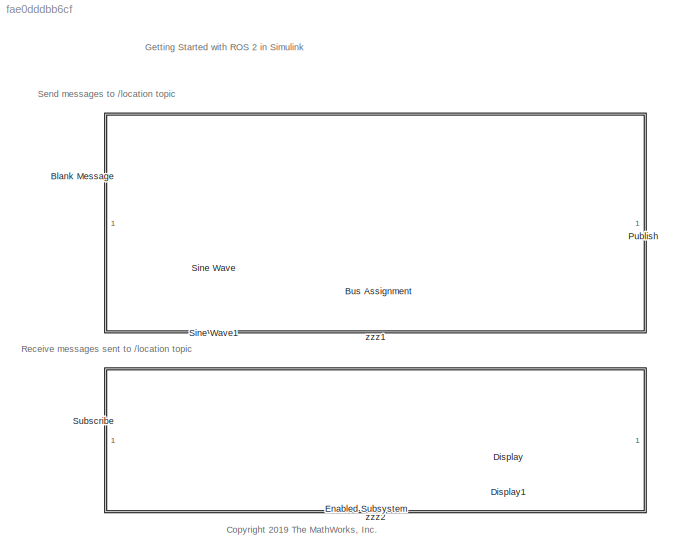
MODEL slx_fae0dddbb6cf
KIND model
CONFIG AbsTol = auto
CONFIG EnableMultiTasking = on
CONFIG FixedStep = 0.01
CONFIG MaxStep = auto
CONFIG MinStep = auto
CONFIG RelTol = 1e-3
CONFIG SampleTimeConstraint = Unconstrained
CONFIG SolverName = FixedStepDiscrete
CONFIG StartTime = 0.0
CONFIG StopTime = 10.0
BLOCK [Reference] Blank Message  REF=ros2lib/Blank Message  (lib defined in slx_3c1549211f48)
  SourceBlock = ros2lib/Blank Message
  SourceType = ROS2 Blank Message
BLOCK [BusAssignment] Bus Assignment
  AssignedSignals = x,y
BLOCK [Display] Display
  Decimation = 1
BLOCK [Display] Display1
  Decimation = 1
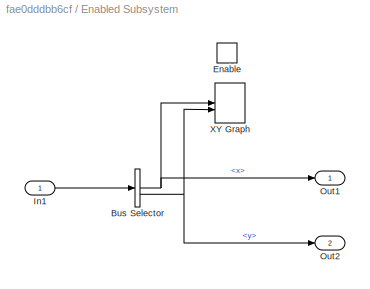
BLOCK [SubSystem] Enabled Subsystem
BLOCK [BusSelector] Enabled Subsystem/Bus Selector
  DialogController = Simulink.DDGSource_BusSelector
  OutputSignals = x,y
BLOCK [EnablePort] Enabled Subsystem/Enable
BLOCK [Inport] Enabled Subsystem/In1
BLOCK [Outport] Enabled Subsystem/Out1
  VectorParamsAs1DForOutWhenUnconnected = off
BLOCK [Outport] Enabled Subsystem/Out2
  Port = 2
  VectorParamsAs1DForOutWhenUnconnected = off
BLOCK [Record] Enabled Subsystem/XY Graph
  CompatibilityTag = XY
  FileSettingsInternal = {"entries":[{"content":{"excelSettings":{"content":{},"type":"Streamout.ExcelSettings"}},"type":"Streamout.FileSettingStorage","uuid":"bdfdf709-59ad-4a98-bc38-dfccb0abf1c8"}],"packageUris":["http://schema.mathworks.com/mf0/streamout_blocks/R2020a"],"version":"1.0"}
  Layout = [1 1]
  SignalsInternal = {"entries":[{"content":{"signals":[{"content":{"blockPath":["ros2GetStartedExample/Enabled Subsystem/XY Graph"],"dimensions":[1],"domain":"ros2GetStartedExample/Enabled Subsystem/XY Graph","lineColor":"#a2142f","plots":[1],"port":1,"signalID":79,"signalName":"XY Graph:1"},"type":"RecordBlkView.Signal","uuid":"59cff7f1-8c77-40d5-b09e-4ba4e0b61617"},{"content":{"blockPath":["ros2GetStartedExample/En...<+441ch>
  VisualizationBindings = {"xyplotplugin":{"info":[{"series":[{"bindingParametersList":[{"parameter":"X-Axis","signalID":79,"signalName":"XY Graph:1"},{"parameter":"Y-Axis","signalID":82,"signalName":"XY Graph:2"}],"seriesID":9009}],"subplotID":1}]}}
  st = -1
BLOCK [Reference] Publish  REF=ros2lib/Publish  (lib defined in slx_3c1549211f48)
  SourceBlock = ros2lib/Publish
  SourceType = ROS2 Publish
BLOCK [Sin] Sine Wave
  Phase = -pi/2
  SampleTime = 0
BLOCK [Sin] Sine Wave1
  SampleTime = 0
BLOCK [Reference] Subscribe  REF=ros2lib/Subscribe  (lib defined in slx_3c1549211f48)
  SourceBlock = ros2lib/Subscribe
  SourceType = ROS2 Subscribe
BLOCK [SubSystem] zzz1
  OpenFcn = % no-op
  TreatAsAtomicUnit = on
BLOCK [SubSystem] zzz2
  OpenFcn = % no-op
  TreatAsAtomicUnit = on
ANNOTATION (root): Getting Started with ROS 2 in Simulink
ANNOTATION (root): Receive messages sent to /location topic
ANNOTATION (root): Send messages to /location topic
ANNOTATION (root): <copyright redacted>
LINE Blank Message:1 -> Bus Assignment:1
LINE Bus Assignment:1 -> Publish:1
NET Enabled Subsystem/Bus Selector:1 -> Enabled Subsystem/Out1:1, Enabled Subsystem/XY Graph:1
NET Enabled Subsystem/Bus Selector:2 -> Enabled Subsystem/Out2:1, Enabled Subsystem/XY Graph:2
LINE Enabled Subsystem/In1:1 -> Enabled Subsystem/Bus Selector:1
LINE Enabled Subsystem:1 -> Display:1
LINE Enabled Subsystem:2 -> Display1:1
LINE Sine Wave1:1 -> Bus Assignment:3
LINE Sine Wave:1 -> Bus Assignment:2
LINE Subscribe:1 -> Enabled Subsystem:enable
LINE Subscribe:2 -> Enabled Subsystem:1
note: NET lines group one-source signal fan-out (src -> all destinations, sorted); 1:1 wires keep LINE
